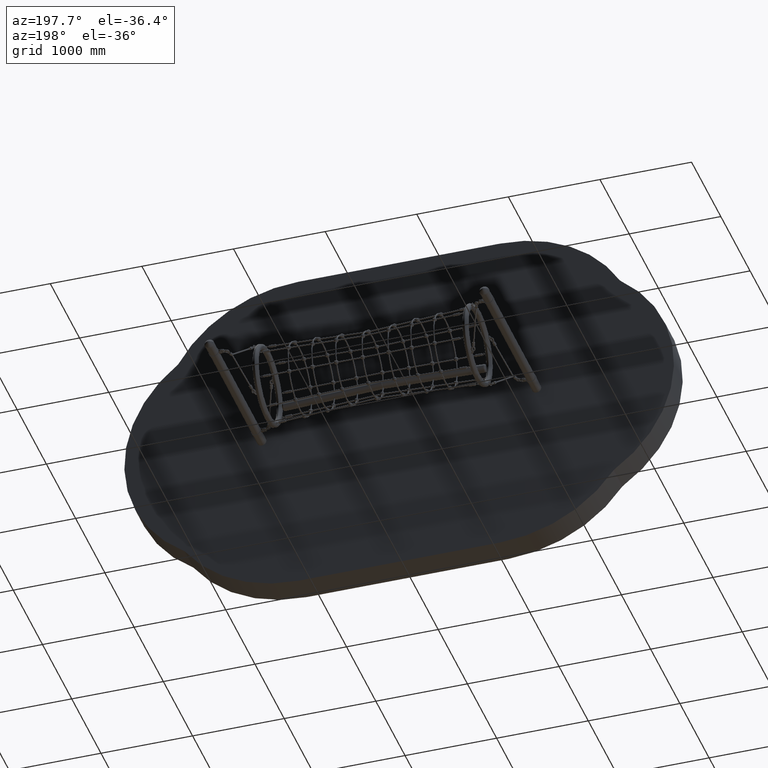
[diagram: clean part render]
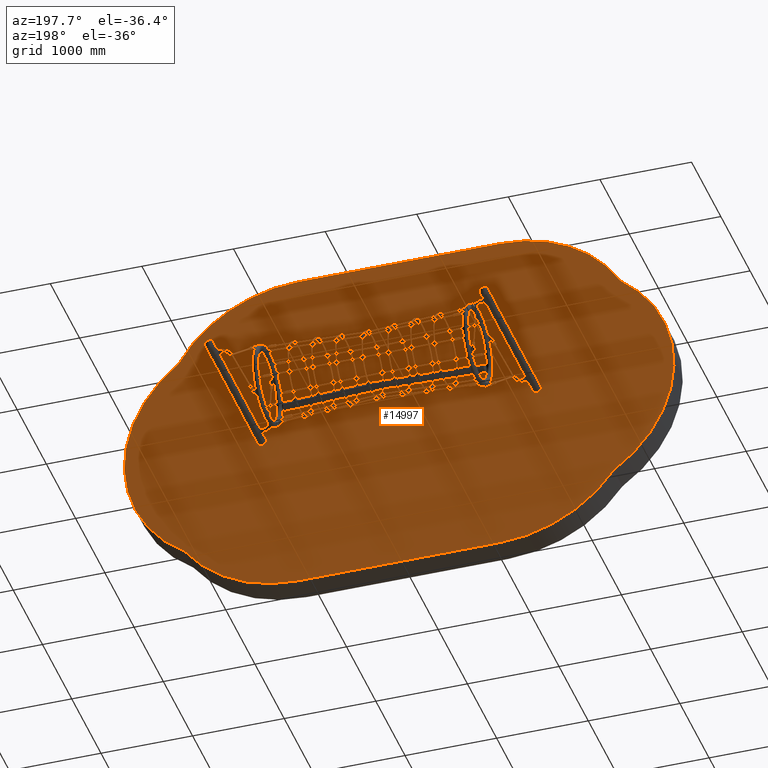
[diagram: same view with one face highlighted and labeled with its STEP entity id]
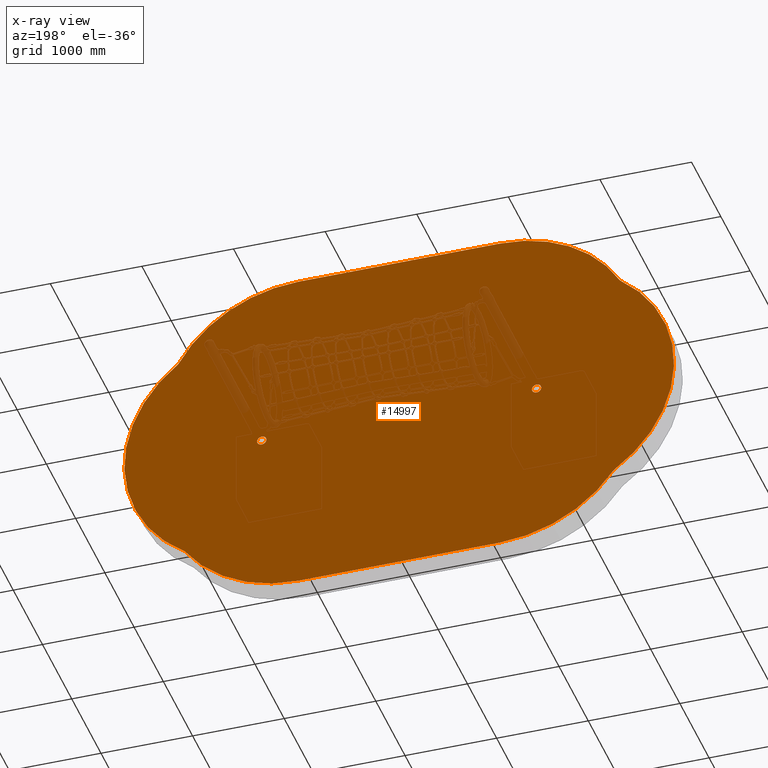
[diagram: x-ray of the same camera — body ghosted, the highlighted face saturated]
A machine part, auxiliary view. The second image highlights one B-rep face of the part: STEP entity #14997.
The next image is the same camera in x-ray: the body ghosted, the highlighted face saturated — about 5% of this face is hidden behind the body in this view.
In plain terms, the highlighted planar face has unit normal (0, 1, 0).
Its self-contained STEP definition (entity closure, byte-faithful):
#212 = AXIS2_PLACEMENT_3D ( 'NONE', #23770, #7674, #26334 ) ;
#277 = CARTESIAN_POINT ( 'NONE',  ( 0.4000000000000000200, 0.2999999999999999900, -1.899999999999999900 ) ) ;
#601 = EDGE_CURVE ( 'NONE', #3191, #16661, #13311, .T. ) ;
#1201 = CARTESIAN_POINT ( 'NONE',  ( 0.0000000000000000000, 0.2999999999999999900, 0.0000000000000000000 ) ) ;
#1293 = VERTEX_POINT ( 'NONE', #14054 ) ;
#1320 = FACE_OUTER_BOUND ( 'NONE', #6534, .T. ) ;
#1539 = EDGE_CURVE ( 'NONE', #16661, #3191, #26254, .T. ) ;
#1578 = ORIENTED_EDGE ( 'NONE', *, *, #32261, .T. ) ;
#1652 = CIRCLE ( 'NONE', #3553, 1.500000000000000000 ) ;
#2204 = FACE_BOUND ( 'NONE', #31558, .T. ) ;
#2306 = CARTESIAN_POINT ( 'NONE',  ( 3.000000000000000000, 0.2999999999999999900, 0.0000000000000000000 ) ) ;
#3191 = VERTEX_POINT ( 'NONE', #16502 ) ;
#3553 = AXIS2_PLACEMENT_3D ( 'NONE', #27348, #11552, #29890 ) ;
#3675 = DIRECTION ( 'NONE',  ( 0.0000000000000000000, 0.0000000000000000000, 1.000000000000000000 ) ) ;
#3724 = DIRECTION ( 'NONE',  ( 0.0000000000000000000, -1.000000000000000000, 0.0000000000000000000 ) ) ;
#3798 = CARTESIAN_POINT ( 'NONE',  ( 3.000000000000000000, 0.2999999999999999900, 0.0000000000000000000 ) ) ;
#3943 = DIRECTION ( 'NONE',  ( 0.0000000000000000000, 0.0000000000000000000, 1.000000000000000000 ) ) ;
#4667 = DIRECTION ( 'NONE',  ( 0.0000000000000000000, 1.000000000000000000, 0.0000000000000000000 ) ) ;
#4841 = ORIENTED_EDGE ( 'NONE', *, *, #16827, .T. ) ;
#4944 = EDGE_LOOP ( 'NONE', ( #24275, #26850 ) ) ;
#5036 = DIRECTION ( 'NONE',  ( 0.0000000000000000000, -0.0000000000000000000, 1.000000000000000000 ) ) ;
#6534 = EDGE_LOOP ( 'NONE', ( #33544, #4841, #11631, #7714, #29532, #30159, #21377, #11593 ) ) ;
#7492 = EDGE_CURVE ( 'NONE', #27126, #22818, #30595, .T. ) ;
#7674 = DIRECTION ( 'NONE',  ( 0.0000000000000000000, 1.000000000000000000, 0.0000000000000000000 ) ) ;
#7684 = PLANE ( 'NONE',  #14627 ) ;
#7714 = ORIENTED_EDGE ( 'NONE', *, *, #7492, .T. ) ;
#8196 = VERTEX_POINT ( 'NONE', #33341 ) ;
#8374 = VECTOR ( 'NONE', #21880, 1.000000000000000000 ) ;
#9187 = CARTESIAN_POINT ( 'NONE',  ( 0.3999999999999999700, 0.2999999999999999900, 1.962000000000000200 ) ) ;
#9282 = CARTESIAN_POINT ( 'NONE',  ( 2.600000000000000100, 0.2999999999999999900, 0.4620000000000000800 ) ) ;
#9357 = CARTESIAN_POINT ( 'NONE',  ( 3.841633332799982500, 0.2999999999999999900, -1.241633332799983600 ) ) ;
#9399 = LINE ( 'NONE', #29875, #22875 ) ;
#9653 = AXIS2_PLACEMENT_3D ( 'NONE', #15064, #33162, #17741 ) ;
#11315 = DIRECTION ( 'NONE',  ( 0.0000000000000000000, -1.000000000000000000, 0.0000000000000000000 ) ) ;
#11552 = DIRECTION ( 'NONE',  ( 0.0000000000000000000, 1.000000000000000000, 0.0000000000000000000 ) ) ;
#11593 = ORIENTED_EDGE ( 'NONE', *, *, #16310, .T. ) ;
#11631 = ORIENTED_EDGE ( 'NONE', *, *, #16049, .T. ) ;
#11705 = EDGE_CURVE ( 'NONE', #22818, #14364, #22707, .T. ) ;
#11870 = EDGE_CURVE ( 'NONE', #20236, #8196, #13722, .T. ) ;
#12043 = DIRECTION ( 'NONE',  ( 1.776356839400250900E-015, 0.0000000000000000000, -1.000000000000000000 ) ) ;
#12384 = AXIS2_PLACEMENT_3D ( 'NONE', #12819, #12588, #12546 ) ;
#12546 = DIRECTION ( 'NONE',  ( 8.881784197001252300E-016, 0.0000000000000000000, -1.000000000000000000 ) ) ;
#12588 = DIRECTION ( 'NONE',  ( 0.0000000000000000000, 1.000000000000000000, 0.0000000000000000000 ) ) ;
#12819 = CARTESIAN_POINT ( 'NONE',  ( 2.600000000000000100, 0.2999999999999999900, -0.4000000000000000200 ) ) ;
#13311 = CIRCLE ( 'NONE', #27585, 0.05100000000000008000 ) ;
#13428 = EDGE_CURVE ( 'NONE', #14364, #20236, #32219, .T. ) ;
#13722 = CIRCLE ( 'NONE', #9653, 1.500000000000000000 ) ;
#14054 = CARTESIAN_POINT ( 'NONE',  ( 6.245698675651500600E-018, 0.2999999999999999900, -0.05099999999999999700 ) ) ;
#14364 = VERTEX_POINT ( 'NONE', #277 ) ;
#14431 = CARTESIAN_POINT ( 'NONE',  ( 3.000000000000000000, 0.2999999999999999900, -0.05100000000000008000 ) ) ;
#14627 = AXIS2_PLACEMENT_3D ( 'NONE', #2306, #21267, #5036 ) ;
#14645 = CARTESIAN_POINT ( 'NONE',  ( -0.8416333327999824300, 0.2999999999999999900, -1.241633332799983300 ) ) ;
#14669 = AXIS2_PLACEMENT_3D ( 'NONE', #1201, #20216, #3943 ) ;
#14962 = VERTEX_POINT ( 'NONE', #15830 ) ;
#14997 = ADVANCED_FACE ( 'NONE', ( #1320, #2204, #15897 ), #7684, .T. ) ;
#15064 = CARTESIAN_POINT ( 'NONE',  ( 0.0000000000000000000, 0.2999999999999999900, 0.0000000000000000000 ) ) ;
#15248 = CIRCLE ( 'NONE', #33613, 1.499999999999999600 ) ;
#15830 = CARTESIAN_POINT ( 'NONE',  ( 0.0000000000000000000, 0.2999999999999999900, 0.05099999999999999700 ) ) ;
#15897 = FACE_BOUND ( 'NONE', #4944, .T. ) ;
#16049 = EDGE_CURVE ( 'NONE', #34088, #27126, #1652, .T. ) ;
#16310 = EDGE_CURVE ( 'NONE', #8196, #27892, #23995, .T. ) ;
#16332 = CIRCLE ( 'NONE', #28462, 0.05099999999999999700 ) ;
#16502 = CARTESIAN_POINT ( 'NONE',  ( 3.000000000000000000, 0.2999999999999999900, 0.05100000000000008000 ) ) ;
#16661 = VERTEX_POINT ( 'NONE', #14431 ) ;
#16827 = EDGE_CURVE ( 'NONE', #22388, #34088, #15248, .T. ) ;
#16897 = ORIENTED_EDGE ( 'NONE', *, *, #20760, .T. ) ;
#17741 = DIRECTION ( 'NONE',  ( 0.0000000000000000000, 0.0000000000000000000, -1.000000000000000000 ) ) ;
#18693 = AXIS2_PLACEMENT_3D ( 'NONE', #20918, #4667, #23559 ) ;
#19193 = EDGE_CURVE ( 'NONE', #27892, #22388, #9399, .T. ) ;
#20216 = DIRECTION ( 'NONE',  ( 0.0000000000000000000, -1.000000000000000000, 0.0000000000000000000 ) ) ;
#20236 = VERTEX_POINT ( 'NONE', #14645 ) ;
#20317 = CARTESIAN_POINT ( 'NONE',  ( 2.600000000000000100, 0.2999999999999999900, 1.962000000000000000 ) ) ;
#20760 = EDGE_CURVE ( 'NONE', #14962, #1293, #28238, .T. ) ;
#20918 = CARTESIAN_POINT ( 'NONE',  ( 0.4000000000000000200, 0.2999999999999999900, -0.4000000000000000200 ) ) ;
#21267 = DIRECTION ( 'NONE',  ( 0.0000000000000000000, 1.000000000000000000, 0.0000000000000000000 ) ) ;
#21377 = ORIENTED_EDGE ( 'NONE', *, *, #11870, .T. ) ;
#21880 = DIRECTION ( 'NONE',  ( -1.000000000000000000, -0.0000000000000000000, 0.0000000000000000000 ) ) ;
#22232 = DIRECTION ( 'NONE',  ( 1.000000000000000000, 0.0000000000000000000, -0.0000000000000000000 ) ) ;
#22388 = VERTEX_POINT ( 'NONE', #20317 ) ;
#22707 = LINE ( 'NONE', #29327, #8374 ) ;
#22818 = VERTEX_POINT ( 'NONE', #24292 ) ;
#22875 = VECTOR ( 'NONE', #22232, 1.000000000000000000 ) ;
#23559 = DIRECTION ( 'NONE',  ( 0.0000000000000000000, 0.0000000000000000000, -1.000000000000000000 ) ) ;
#23770 = CARTESIAN_POINT ( 'NONE',  ( 0.4000000000000000200, 0.2999999999999999900, 0.4620000000000000800 ) ) ;
#23995 = CIRCLE ( 'NONE', #212, 1.500000000000000000 ) ;
#24275 = ORIENTED_EDGE ( 'NONE', *, *, #601, .T. ) ;
#24292 = CARTESIAN_POINT ( 'NONE',  ( 2.600000000000000100, 0.2999999999999999900, -1.899999999999999900 ) ) ;
#24915 = AXIS2_PLACEMENT_3D ( 'NONE', #3798, #3724, #3675 ) ;
#26254 = CIRCLE ( 'NONE', #24915, 0.05100000000000008000 ) ;
#26334 = DIRECTION ( 'NONE',  ( 0.0000000000000000000, 0.0000000000000000000, -1.000000000000000000 ) ) ;
#26850 = ORIENTED_EDGE ( 'NONE', *, *, #1539, .T. ) ;
#27126 = VERTEX_POINT ( 'NONE', #9357 ) ;
#27147 = CARTESIAN_POINT ( 'NONE',  ( 0.0000000000000000000, 0.2999999999999999900, 0.0000000000000000000 ) ) ;
#27348 = CARTESIAN_POINT ( 'NONE',  ( 3.000000000000000000, 0.2999999999999999900, 0.0000000000000000000 ) ) ;
#27585 = AXIS2_PLACEMENT_3D ( 'NONE', #33307, #33266, #33190 ) ;
#27787 = DIRECTION ( 'NONE',  ( 0.0000000000000000000, 1.000000000000000000, 0.0000000000000000000 ) ) ;
#27892 = VERTEX_POINT ( 'NONE', #9187 ) ;
#28238 = CIRCLE ( 'NONE', #14669, 0.05099999999999999700 ) ;
#28462 = AXIS2_PLACEMENT_3D ( 'NONE', #27147, #11315, #29684 ) ;
#28623 = CARTESIAN_POINT ( 'NONE',  ( 3.910242785540370700, 0.2999999999999999900, 1.192249164970018400 ) ) ;
#29327 = CARTESIAN_POINT ( 'NONE',  ( 3.000000000000000000, 0.2999999999999999900, -1.900000000000000100 ) ) ;
#29532 = ORIENTED_EDGE ( 'NONE', *, *, #11705, .T. ) ;
#29684 = DIRECTION ( 'NONE',  ( 0.0000000000000000000, 0.0000000000000000000, 1.000000000000000000 ) ) ;
#29875 = CARTESIAN_POINT ( 'NONE',  ( 3.000000000000000000, 0.2999999999999999900, 1.962000000000000200 ) ) ;
#29890 = DIRECTION ( 'NONE',  ( 8.881784197001252300E-016, 0.0000000000000000000, -1.000000000000000000 ) ) ;
#30159 = ORIENTED_EDGE ( 'NONE', *, *, #13428, .T. ) ;
#30595 = CIRCLE ( 'NONE', #12384, 1.500000000000000000 ) ;
#31558 = EDGE_LOOP ( 'NONE', ( #16897, #1578 ) ) ;
#32219 = CIRCLE ( 'NONE', #18693, 1.500000000000000000 ) ;
#32261 = EDGE_CURVE ( 'NONE', #1293, #14962, #16332, .T. ) ;
#33162 = DIRECTION ( 'NONE',  ( 0.0000000000000000000, 1.000000000000000000, 0.0000000000000000000 ) ) ;
#33190 = DIRECTION ( 'NONE',  ( 0.0000000000000000000, 0.0000000000000000000, 1.000000000000000000 ) ) ;
#33266 = DIRECTION ( 'NONE',  ( 0.0000000000000000000, -1.000000000000000000, 0.0000000000000000000 ) ) ;
#33307 = CARTESIAN_POINT ( 'NONE',  ( 3.000000000000000000, 0.2999999999999999900, 0.0000000000000000000 ) ) ;
#33341 = CARTESIAN_POINT ( 'NONE',  ( -0.9102427855403714100, 0.2999999999999999900, 1.192249164970017800 ) ) ;
#33544 = ORIENTED_EDGE ( 'NONE', *, *, #19193, .T. ) ;
#33613 = AXIS2_PLACEMENT_3D ( 'NONE', #9282, #27787, #12043 ) ;
#34088 = VERTEX_POINT ( 'NONE', #28623 ) ;